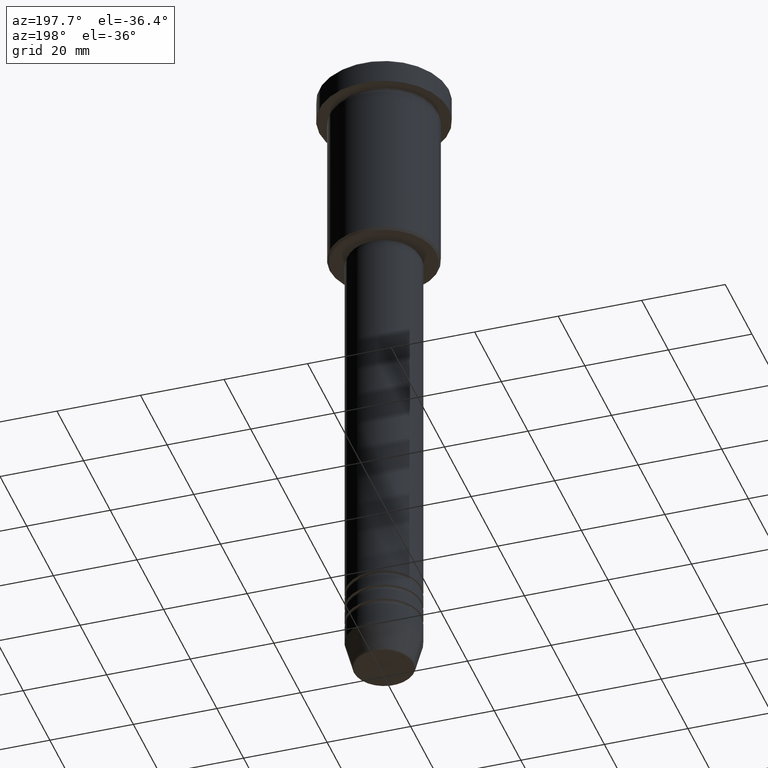
[diagram: clean part render]
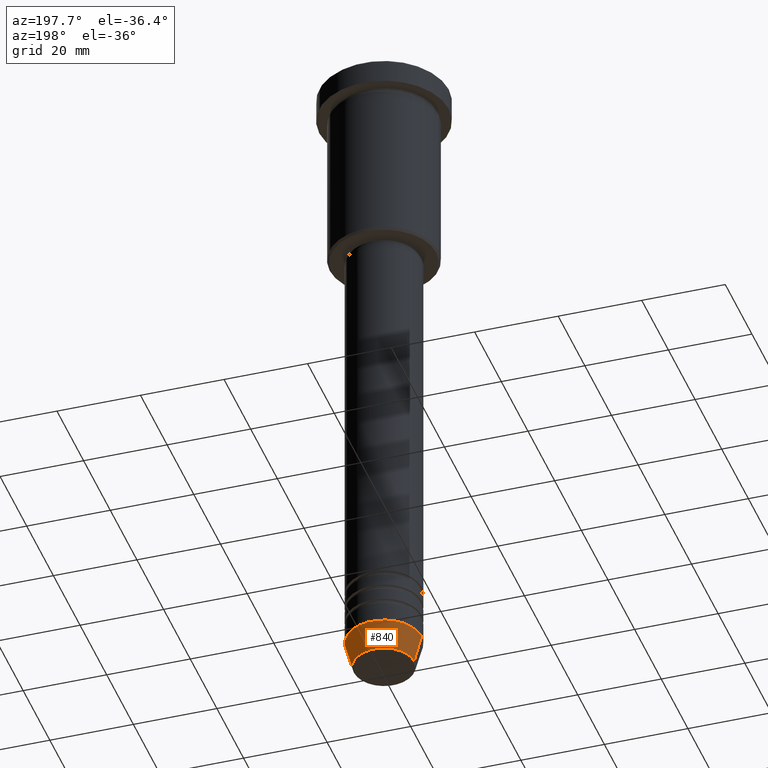
[diagram: same view with one face highlighted and labeled with its STEP entity id]
A machine part, auxiliary view. The second image highlights one B-rep face of the part: STEP entity #840.
In plain terms, the highlighted conical surface has half-angle 15 deg.
Its self-contained STEP definition (entity closure, byte-faithful):
#5 = VERTEX_POINT ( 'NONE', #111 ) ;
#81 = EDGE_LOOP ( 'NONE', ( #852, #733, #329, #1065 ) ) ;
#92 = CARTESIAN_POINT ( 'NONE',  ( -9.000000000000000000, 1.102182119232617714E-15, -154.0000000000000284 ) ) ;
#107 = CARTESIAN_POINT ( 'NONE',  ( -7.223655072137189492, 9.934123627281765110E-16, -160.6294095225512990 ) ) ;
#111 = CARTESIAN_POINT ( 'NONE',  ( 9.000000000000000000, 0.000000000000000000, -154.0000000000000284 ) ) ;
#210 = DIRECTION ( 'NONE',  ( -0.000000000000000000, -0.000000000000000000, 1.000000000000000000 ) ) ;
#289 = CONICAL_SURFACE ( 'NONE', #627, 9.000000000000000000, 0.2617993877991500740 ) ;
#296 = DIRECTION ( 'NONE',  ( 1.000000000000000000, 0.000000000000000000, 0.000000000000000000 ) ) ;
#304 = DIRECTION ( 'NONE',  ( 1.000000000000000000, 0.000000000000000000, 0.000000000000000000 ) ) ;
#328 = DIRECTION ( 'NONE',  ( 0.2588190451025213501, 0.000000000000000000, 0.9659258262890680902 ) ) ;
#329 = ORIENTED_EDGE ( 'NONE', *, *, #1013, .F. ) ;
#347 = EDGE_CURVE ( 'NONE', #803, #567, #1109, .T. ) ;
#408 = CARTESIAN_POINT ( 'NONE',  ( 7.223655072137188604, 0.000000000000000000, -160.6294095225512990 ) ) ;
#410 = CARTESIAN_POINT ( 'NONE',  ( 9.000000000000000000, 0.000000000000000000, -154.0000000000000284 ) ) ;
#469 = DIRECTION ( 'NONE',  ( -0.2588190451025213501, 3.169619151431772337E-17, 0.9659258262890680902 ) ) ;
#510 = DIRECTION ( 'NONE',  ( 1.000000000000000000, 0.000000000000000000, 0.000000000000000000 ) ) ;
#558 = VECTOR ( 'NONE', #328, 1000.000000000000000 ) ;
#567 = VERTEX_POINT ( 'NONE', #735 ) ;
#627 = AXIS2_PLACEMENT_3D ( 'NONE', #1127, #210, #296 ) ;
#629 = AXIS2_PLACEMENT_3D ( 'NONE', #784, #692, #510 ) ;
#691 = CARTESIAN_POINT ( 'NONE',  ( 0.000000000000000000, 0.000000000000000000, -154.0000000000000284 ) ) ;
#692 = DIRECTION ( 'NONE',  ( -0.000000000000000000, -0.000000000000000000, 1.000000000000000000 ) ) ;
#733 = ORIENTED_EDGE ( 'NONE', *, *, #347, .T. ) ;
#735 = CARTESIAN_POINT ( 'NONE',  ( -9.000000000000000000, 1.102182119232617714E-15, -154.0000000000000284 ) ) ;
#784 = CARTESIAN_POINT ( 'NONE',  ( 0.000000000000000000, 0.000000000000000000, -160.6294095225512990 ) ) ;
#803 = VERTEX_POINT ( 'NONE', #107 ) ;
#840 = ADVANCED_FACE ( 'NONE', ( #925 ), #289, .T. ) ;
#852 = ORIENTED_EDGE ( 'NONE', *, *, #1058, .T. ) ;
#880 = DIRECTION ( 'NONE',  ( -0.000000000000000000, -0.000000000000000000, 1.000000000000000000 ) ) ;
#925 = FACE_OUTER_BOUND ( 'NONE', #81, .T. ) ;
#959 = LINE ( 'NONE', #410, #558 ) ;
#977 = EDGE_CURVE ( 'NONE', #1143, #5, #959, .T. ) ;
#1013 = EDGE_CURVE ( 'NONE', #5, #567, #1085, .T. ) ;
#1026 = VECTOR ( 'NONE', #469, 1000.000000000000000 ) ;
#1058 = EDGE_CURVE ( 'NONE', #1143, #803, #1100, .T. ) ;
#1065 = ORIENTED_EDGE ( 'NONE', *, *, #977, .F. ) ;
#1085 = CIRCLE ( 'NONE', #1139, 9.000000000000000000 ) ;
#1100 = CIRCLE ( 'NONE', #629, 7.223655072137188604 ) ;
#1109 = LINE ( 'NONE', #92, #1026 ) ;
#1127 = CARTESIAN_POINT ( 'NONE',  ( 0.000000000000000000, 0.000000000000000000, -154.0000000000000284 ) ) ;
#1139 = AXIS2_PLACEMENT_3D ( 'NONE', #691, #880, #304 ) ;
#1143 = VERTEX_POINT ( 'NONE', #408 ) ;